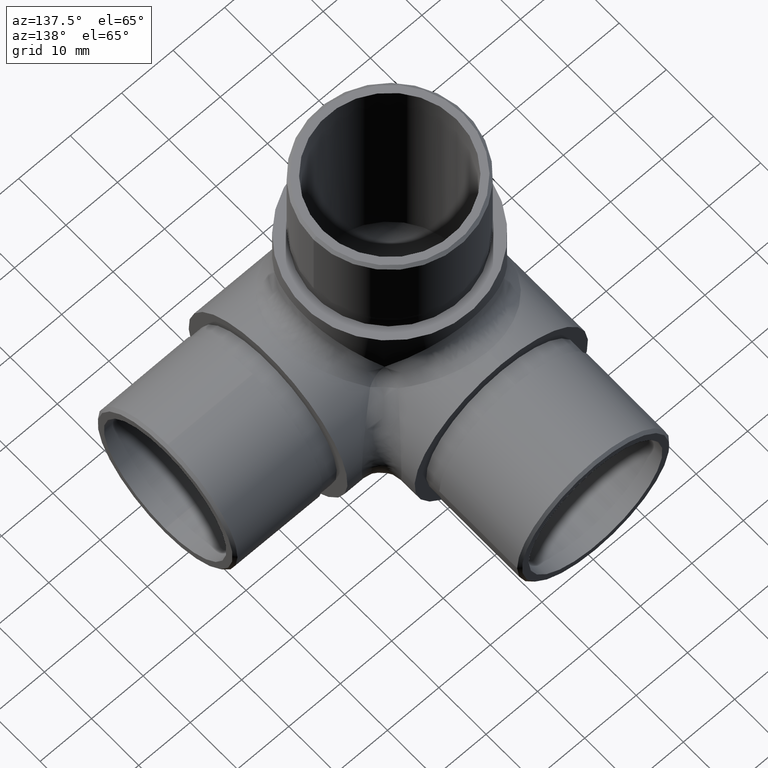
[diagram: clean part render]
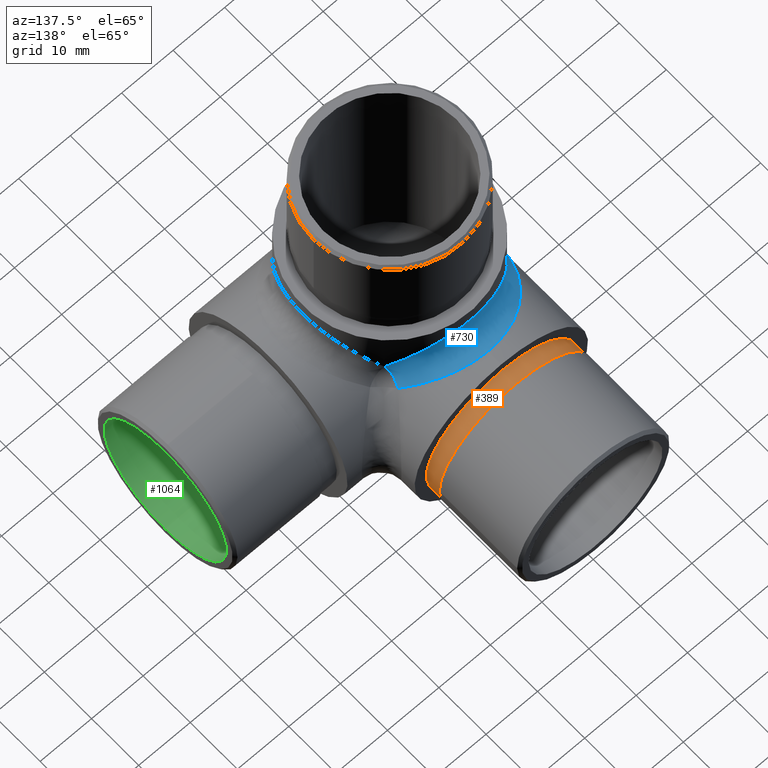
[diagram: same view with three faces highlighted in distinct colors, each labeled with its STEP entity id]
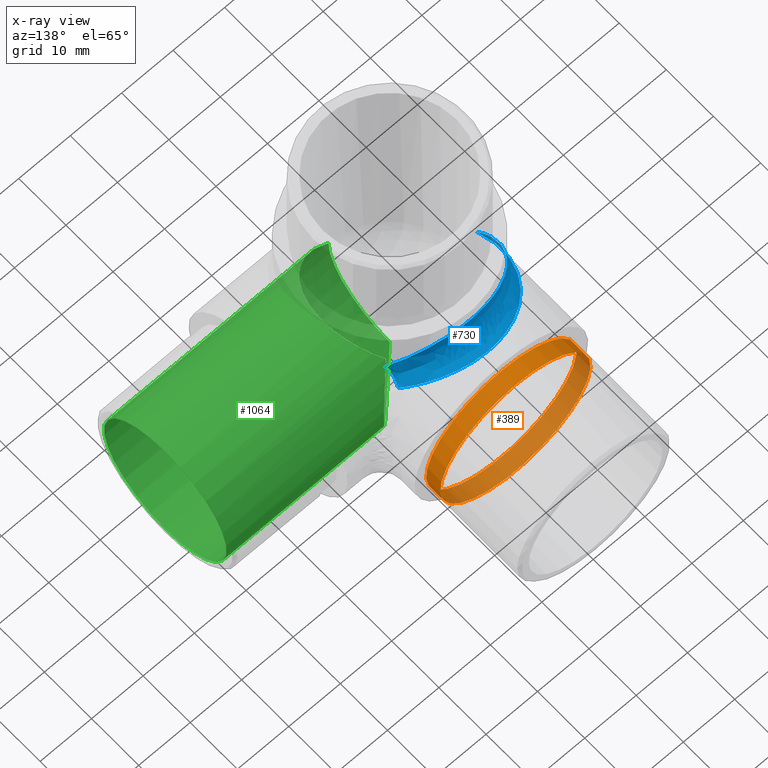
[diagram: x-ray of the same camera — body ghosted, the three highlighted faces saturated]
A machine part, auxiliary view with three faces highlighted in distinct colors.
The next image is the same camera in x-ray (body ghosted, the three faces saturated) — at least one of them is partly hidden behind the body in this view.
Their STEP definitions:

[orange] entity #389 — the highlighted cylindrical surface (bore or boss wall) has radius 14.6 mm, axis along (-0, -1, 0).
#18 = AXIS2_PLACEMENT_3D ( 'NONE', #583, #180, #933 ) ;
#180 = DIRECTION ( 'NONE',  ( 0.0000000000000000000, 1.000000000000000000, 0.0000000000000000000 ) ) ;
#198 = EDGE_CURVE ( 'NONE', #474, #474, #563, .T. ) ;
#205 = VERTEX_POINT ( 'NONE', #786 ) ;
#286 = CARTESIAN_POINT ( 'NONE',  ( 0.0000000000000000000, 40.49999999999999300, 31.44999999999998500 ) ) ;
#336 = DIRECTION ( 'NONE',  ( -0.0000000000000000000, -1.000000000000000000, 4.440892098500624700E-016 ) ) ;
#389 = ADVANCED_FACE ( 'NONE', ( #1061, #904 ), #833, .T. ) ;
#396 = ORIENTED_EDGE ( 'NONE', *, *, #537, .T. ) ;
#413 = DIRECTION ( 'NONE',  ( -0.0000000000000000000, -1.000000000000000000, 4.440892098500625200E-016 ) ) ;
#468 = CIRCLE ( 'NONE', #811, 14.60000000000000100 ) ;
#474 = VERTEX_POINT ( 'NONE', #286 ) ;
#537 = EDGE_CURVE ( 'NONE', #205, #205, #468, .T. ) ;
#563 = CIRCLE ( 'NONE', #18, 14.60000000000000100 ) ;
#574 = DIRECTION ( 'NONE',  ( 0.0000000000000000000, 4.752667057470704400E-016, 1.000000000000000000 ) ) ;
#582 = AXIS2_PLACEMENT_3D ( 'NONE', #756, #336, #855 ) ;
#583 = CARTESIAN_POINT ( 'NONE',  ( 0.0000000000000000000, 40.49999999999999300, 16.84999999999998400 ) ) ;
#704 = EDGE_LOOP ( 'NONE', ( #396 ) ) ;
#756 = CARTESIAN_POINT ( 'NONE',  ( 0.0000000000000000000, 43.50000000000001400, 16.84999999999998400 ) ) ;
#786 = CARTESIAN_POINT ( 'NONE',  ( 0.0000000000000000000, 43.50000000000002100, 31.44999999999998500 ) ) ;
#811 = AXIS2_PLACEMENT_3D ( 'NONE', #836, #413, #574 ) ;
#833 = CYLINDRICAL_SURFACE ( 'NONE', #582, 14.60000000000000000 ) ;
#836 = CARTESIAN_POINT ( 'NONE',  ( 0.0000000000000000000, 43.50000000000001400, 16.84999999999998400 ) ) ;
#855 = DIRECTION ( 'NONE',  ( 0.0000000000000000000, -4.752667057470704400E-016, -1.000000000000000000 ) ) ;
#904 = FACE_OUTER_BOUND ( 'NONE', #972, .T. ) ;
#933 = DIRECTION ( 'NONE',  ( 0.0000000000000000000, 0.0000000000000000000, 1.000000000000000000 ) ) ;
#970 = ORIENTED_EDGE ( 'NONE', *, *, #198, .T. ) ;
#972 = EDGE_LOOP ( 'NONE', ( #970 ) ) ;
#1061 = FACE_OUTER_BOUND ( 'NONE', #704, .T. ) ;

[blue] entity #730 — the highlighted face is a freeform B-spline surface patch.
#3 = CARTESIAN_POINT ( 'NONE',  ( -13.55073836021521100, 26.89908560142682600, 29.28462521007369900 ) ) ;
#16 = CARTESIAN_POINT ( 'NONE',  ( -0.8284491946658233400, 33.69993482074809100, 37.69991934792910400 ) ) ;
#19 = CARTESIAN_POINT ( 'NONE',  ( -2.550014675951885600, 33.53628196689218300, 33.53628196688850900 ) ) ;
#24 = CARTESIAN_POINT ( 'NONE',  ( -1.902788127803678900, 33.61309417136821800, 33.61309417136823200 ) ) ;
#32 = CARTESIAN_POINT ( 'NONE',  ( -3.896595488051196800, 33.28909050839045800, 33.28909050839408900 ) ) ;
#38 = CARTESIAN_POINT ( 'NONE',  ( -3.291881413837700200, 33.39600097572998300, 37.32383503524874900 ) ) ;
#56 =( BOUNDED_SURFACE ( )  B_SPLINE_SURFACE ( 3, 2, ( 
 ( #598, #342, #752 ),
 ( #162, #679, #514 ),
 ( #174, #248, #690 ),
 ( #181, #253, #261 ),
 ( #327, #844, #335 ),
 ( #930, #500, #3 ),
 ( #85, #675, #755 ),
 ( #953, #1031, #119 ),
 ( #530, #709, #958 ),
 ( #453, #778, #112 ),
 ( #187, #285, #534 ),
 ( #1027, #607, #950 ),
 ( #348, #264, #939 ),
 ( #356, #194, #1022 ),
 ( #782, #32, #442 ),
 ( #200, #19, #38 ),
 ( #771, #24, #438 ),
 ( #788, #697, #16 ),
 ( #275, #522, #945 ),
 ( #268, #364, #618 ),
 ( #118, #879, #281 ),
 ( #456, #864, #359 ),
 ( #872, #1037, #121 ),
 ( #538, #712, #206 ),
 ( #372, #790, #518 ),
 ( #105, #693, #463 ),
 ( #633, #126, #795 ),
 ( #210, #129, #1048 ),
 ( #1044, #1052, #797 ),
 ( #715, #884, #721 ) ),
 .UNSPECIFIED., .F., .F., .F. ) 
 B_SPLINE_SURFACE_WITH_KNOTS ( ( 4, 2, 2, 2, 2, 2, 2, 2, 2, 2, 2, 2, 2, 2, 4 ),
 ( 3, 3 ),
 ( 4.712388980384689700, 5.006913291658732700, 5.301437602932775700, 5.448699758569797600, 5.595961914206819500, 5.743224069843840600, 5.890486225480862500, 6.037748381117884500, 6.185010536754905500, 6.332272692391927500, 6.479534848028949400, 6.626797003665970500, 6.774059159302992400, 6.921321314940014300, 7.068583470577035400 ),
 ( 0.0000000000000000000, 1.000000000000000000 ),
 .UNSPECIFIED. ) 
 GEOMETRIC_REPRESENTATION_ITEM ( )  RATIONAL_B_SPLINE_SURFACE ( (
 ( 1.000000000000000000, 1.000000000000000000, 1.000000000000000000),
 ( 1.000000000000000000, 1.000049692711791900, 1.000000000000000000),
 ( 1.000000000000000000, 0.9926394134258085300, 1.000000000000000000),
 ( 1.000000000000000000, 0.9647745980450768100, 1.000000000000000000),
 ( 1.000000000000000000, 0.9442614554963632000, 1.000000000000000000),
 ( 1.000000000000000000, 0.9072747350166160400, 1.000000000000000000),
 ( 1.000000000000000000, 0.8939364460772180100, 1.000000000000000000),
 ( 1.000000000000000000, 0.8661820557088287800, 1.000000000000000000),
 ( 1.000000000000000000, 0.8517664595825985600, 1.000000000000000000),
 ( 1.000000000000000000, 0.8230199978452930100, 1.000000000000000000),
 ( 1.000000000000000000, 0.8086913583441853700, 1.000000000000000000),
 ( 1.000000000000000000, 0.7814668926402879000, 1.000000000000000000),
 ( 1.000000000000000000, 0.7685763963373663000, 1.000000000000000000),
 ( 1.000000000000000000, 0.7456538433598366400, 1.000000000000000000),
 ( 1.000000000000000000, 0.7356308174511289000, 1.000000000000000000),
 ( 1.000000000000000000, 0.7197312459721430000, 1.000000000000000000),
 ( 1.000000000000000000, 0.7138650231661207700, 1.000000000000000000),
 ( 1.000000000000000000, 0.7071257296527597700, 1.000000000000000000),
 ( 1.000000000000000000, 0.7062584530666192700, 1.000000000000000000),
 ( 1.000000000000000000, 0.7096565420258839100, 1.000000000000000000),
 ( 1.000000000000000000, 0.7139188639523939000, 1.000000000000000000),
 ( 1.000000000000000000, 0.7269560325909221200, 1.000000000000000000),
 ( 1.000000000000000000, 0.7357213436838573300, 1.000000000000000000),
 ( 1.000000000000000000, 0.7565887938670695600, 1.000000000000000000),
 ( 1.000000000000000000, 0.7686809988151190900, 1.000000000000000000),
 ( 1.000000000000000000, 0.7947862272502066400, 1.000000000000000000),
 ( 1.000000000000000000, 0.8087926538586103200, 1.000000000000000000),
 ( 1.000000000000000000, 0.8373286426276302900, 1.000000000000000000),
 ( 1.000000000000000000, 0.8518581657886930000, 1.000000000000000000),
 ( 1.000000000000000000, 0.8660254037844381500, 1.000000000000000000) ) ) 
 REPRESENTATION_ITEM ( '' )  SURFACE ( )  );
#68 = VERTEX_POINT ( 'NONE', #321 ) ;
#85 = CARTESIAN_POINT ( 'NONE',  ( -13.04048794398631700, 30.09366149215346200, 27.55291108598635600 ) ) ;
#95 = CIRCLE ( 'NONE', #576, 3.999999999999998200 ) ;
#105 = CARTESIAN_POINT ( 'NONE',  ( 8.672491884076693600, 34.75559700941654700, 31.32047048482940400 ) ) ;
#112 = CARTESIAN_POINT ( 'NONE',  ( -10.05015254536182400, 30.39994706066054100, 33.61655170413994400 ) ) ;
#114 = ORIENTED_EDGE ( 'NONE', *, *, #1004, .T. ) ;
#118 = CARTESIAN_POINT ( 'NONE',  ( 2.476042411216803400, 37.49904257481411900, 33.53759555806259800 ) ) ;
#119 = CARTESIAN_POINT ( 'NONE',  ( -11.92956498047467800, 28.77862569235940200, 31.61034692496281900 ) ) ;
#121 = CARTESIAN_POINT ( 'NONE',  ( 4.897821804585924500, 32.99366665606586200, 36.82599108480417300 ) ) ;
#126 = CARTESIAN_POINT ( 'NONE',  ( 8.179165438592150400, 31.67445315693311900, 31.67445315692892600 ) ) ;
#129 = CARTESIAN_POINT ( 'NONE',  ( 9.602003533387078300, 30.79191703265672000, 30.79191703266078800 ) ) ;
#162 = CARTESIAN_POINT ( 'NONE',  ( -16.84999999999999800, 18.89706118963251000, 18.50433961848018100 ) ) ;
#174 = CARTESIAN_POINT ( 'NONE',  ( -16.60464659856220500, 20.94363227762756500, 20.15828315962186000 ) ) ;
#181 = CARTESIAN_POINT ( 'NONE',  ( -15.64424271561319900, 24.86123876388360900, 23.32431046385362100 ) ) ;
#187 = CARTESIAN_POINT ( 'NONE',  ( -9.372077820912288400, 34.20747176428095300, 30.87750116201994600 ) ) ;
#194 = CARTESIAN_POINT ( 'NONE',  ( -4.587687804158994400, 33.12147724458719000, 33.12147724458719700 ) ) ;
#200 = CARTESIAN_POINT ( 'NONE',  ( -3.291881413838560800, 37.32383503525240100, 33.39600097572977700 ) ) ;
#206 = CARTESIAN_POINT ( 'NONE',  ( 6.455366254731967700, 32.43636834060191600, 36.13639643332776100 ) ) ;
#210 = CARTESIAN_POINT ( 'NONE',  ( 10.70188425443981500, 32.98719548388611100, 29.89133064285653100 ) ) ;
#244 = EDGE_LOOP ( 'NONE', ( #944, #114, #460 ) ) ;
#248 = CARTESIAN_POINT ( 'NONE',  ( -16.53677265078305300, 20.57543984439902100, 20.57543984441357700 ) ) ;
#253 = CARTESIAN_POINT ( 'NONE',  ( -15.35861035221727100, 24.06692191216546200, 24.06692191215051200 ) ) ;
#261 = CARTESIAN_POINT ( 'NONE',  ( -15.64424271561183300, 23.32431046385810800, 24.86123876388362000 ) ) ;
#264 = CARTESIAN_POINT ( 'NONE',  ( -6.007917976352775500, 32.66431149141736500, 32.66431149141736500 ) ) ;
#268 = CARTESIAN_POINT ( 'NONE',  ( 1.652916447725422100, 37.62466587201525700, 33.63911846251723100 ) ) ;
#275 = CARTESIAN_POINT ( 'NONE',  ( 0.0006641771086185075900, 37.72510465174043800, 33.72028841159708900 ) ) ;
#281 = CARTESIAN_POINT ( 'NONE',  ( 2.476042411216111500, 33.53759555806273300, 37.49904257481051000 ) ) ;
#285 = CARTESIAN_POINT ( 'NONE',  ( -8.176670518203900800, 31.67249837655805000, 31.67249837655805300 ) ) ;
#294 = DIRECTION ( 'NONE',  ( 0.5773502691896251800, -0.5773502691896260600, -0.5773502691896260600 ) ) ;
#304 = DIRECTION ( 'NONE',  ( -8.673617379884039400E-016, -0.7071067811865479100, 0.7071067811865471300 ) ) ;
#321 = CARTESIAN_POINT ( 'NONE',  ( -16.85000000000000500, 16.84999999999998400, 16.84999999999999400 ) ) ;
#327 = CARTESIAN_POINT ( 'NONE',  ( -14.92931218146187100, 26.73166765522400800, 24.83590407628928900 ) ) ;
#333 = VERTEX_POINT ( 'NONE', #768 ) ;
#335 = CARTESIAN_POINT ( 'NONE',  ( -14.92931218146329000, 24.83590407628716100, 26.73166765522863400 ) ) ;
#342 = CARTESIAN_POINT ( 'NONE',  ( -16.84999999999999800, 16.84999999999999800, 16.85000000000000900 ) ) ;
#348 = CARTESIAN_POINT ( 'NONE',  ( -7.212377329057616700, 35.72122248211493200, 32.10084406827894600 ) ) ;
#354 = CARTESIAN_POINT ( 'NONE',  ( -16.85000000000001200, 38.67309936558652300, 34.48641363597759800 ) ) ;
#356 = CARTESIAN_POINT ( 'NONE',  ( -5.684054341645815400, 36.50455402360577000, 32.73389617735147500 ) ) ;
#359 = CARTESIAN_POINT ( 'NONE',  ( 4.098501440727354800, 33.21486839152614600, 37.09970361800424100 ) ) ;
#362 =( BOUNDED_CURVE ( )  B_SPLINE_CURVE ( 3, ( #943, #354, #1026, #457 ),
 .UNSPECIFIED., .F., .F. ) 
 B_SPLINE_CURVE_WITH_KNOTS ( ( 4, 4 ),
 ( 4.712388980384688800, 7.068583470577034500 ),
 .UNSPECIFIED. ) 
 CURVE ( )  GEOMETRIC_REPRESENTATION_ITEM ( )  RATIONAL_B_SPLINE_CURVE ( ( 1.000000000000000000, 0.5884556215767262600, 0.5884556215767262600, 1.000000000000000000 ) ) 
 REPRESENTATION_ITEM ( '' )  );
#364 = CARTESIAN_POINT ( 'NONE',  ( 1.262782113315530400, 33.66787279699640600, 33.66787279699640600 ) ) ;
#372 = CARTESIAN_POINT ( 'NONE',  ( 7.213578146959532600, 35.72051971390977300, 32.10027612371012400 ) ) ;
#378 =( BOUNDED_CURVE ( )  B_SPLINE_CURVE ( 3, ( #711, #707, #794, #1045 ),
 .UNSPECIFIED., .F., .F. ) 
 B_SPLINE_CURVE_WITH_KNOTS ( ( 4, 4 ),
 ( 5.497787143782138000, 7.853981633974483700 ),
 .UNSPECIFIED. ) 
 CURVE ( )  GEOMETRIC_REPRESENTATION_ITEM ( )  RATIONAL_B_SPLINE_CURVE ( ( 1.000000000000000000, 0.5884556215767262600, 0.5884556215767262600, 1.000000000000000000 ) ) 
 REPRESENTATION_ITEM ( '' )  );
#432 = VERTEX_POINT ( 'NONE', #523 ) ;
#438 = CARTESIAN_POINT ( 'NONE',  ( -2.474728434440271100, 33.53779046810495100, 37.49928375430153000 ) ) ;
#442 = CARTESIAN_POINT ( 'NONE',  ( -4.896550648902248800, 32.99405225692616000, 36.82646822296377600 ) ) ;
#453 = CARTESIAN_POINT ( 'NONE',  ( -10.05015254536119300, 33.61655170413993000, 30.39994706066107000 ) ) ;
#456 = CARTESIAN_POINT ( 'NONE',  ( 4.098501440726662000, 37.09970361800061100, 33.21486839152629500 ) ) ;
#457 = CARTESIAN_POINT ( 'NONE',  ( 11.91474926299332900, 31.59317638773950800, 28.76474926299332700 ) ) ;
#460 = ORIENTED_EDGE ( 'NONE', *, *, #817, .F. ) ;
#463 = CARTESIAN_POINT ( 'NONE',  ( 8.672491884076693600, 31.32047048482938900, 34.75559700941656200 ) ) ;
#500 = CARTESIAN_POINT ( 'NONE',  ( -12.85083583709549200, 27.84872592894996800, 27.84872592894295800 ) ) ;
#514 = CARTESIAN_POINT ( 'NONE',  ( -16.84999999999999800, 18.50433961848149900, 18.89706118963416500 ) ) ;
#518 = CARTESIAN_POINT ( 'NONE',  ( 7.213578146959532600, 32.10027612371011000, 35.72051971390978800 ) ) ;
#522 = CARTESIAN_POINT ( 'NONE',  ( -0.002894757781482992000, 33.71082885428258200, 33.71082885428258900 ) ) ;
#523 = CARTESIAN_POINT ( 'NONE',  ( 11.91474926299332700, 28.76474926299331300, 31.59317638773950800 ) ) ;
#530 = CARTESIAN_POINT ( 'NONE',  ( -11.32890113095360200, 32.31798420108626100, 29.35050521766323700 ) ) ;
#534 = CARTESIAN_POINT ( 'NONE',  ( -9.372077820913023800, 30.87750116201949900, 34.20747176428096000 ) ) ;
#538 = CARTESIAN_POINT ( 'NONE',  ( 6.455366254731967700, 36.13639643332775400, 32.43636834060192300 ) ) ;
#576 = AXIS2_PLACEMENT_3D ( 'NONE', #967, #294, #304 ) ;
#598 = CARTESIAN_POINT ( 'NONE',  ( -16.84999999999999800, 16.84999999999999800, 16.85000000000000900 ) ) ;
#607 = CARTESIAN_POINT ( 'NONE',  ( -6.730578844063210800, 32.37952239489945300, 32.37952239489945300 ) ) ;
#618 = CARTESIAN_POINT ( 'NONE',  ( 1.652916447725422100, 33.63911846251722400, 37.62466587201525700 ) ) ;
#633 = CARTESIAN_POINT ( 'NONE',  ( 9.373182306955239800, 34.20655857885672900, 30.87676316804118700 ) ) ;
#675 = CARTESIAN_POINT ( 'NONE',  ( -12.24997251432274000, 28.51757407722634600, 28.51757407722417200 ) ) ;
#679 = CARTESIAN_POINT ( 'NONE',  ( -16.85000000000501800, 18.70061713646007100, 18.70061713645505800 ) ) ;
#690 = CARTESIAN_POINT ( 'NONE',  ( -16.60464659856356900, 20.15828315961735100, 20.94363227762757500 ) ) ;
#693 = CARTESIAN_POINT ( 'NONE',  ( 7.453532806661487000, 32.04650414770814100, 32.04650414770815600 ) ) ;
#697 = CARTESIAN_POINT ( 'NONE',  ( -0.6251163988764962800, 33.70080803506641600, 33.70080803506641600 ) ) ;
#707 = CARTESIAN_POINT ( 'NONE',  ( -0.5560784148173330000, 41.23557694080398100, 47.02443793565361600 ) ) ;
#709 = CARTESIAN_POINT ( 'NONE',  ( -10.29547838493556400, 30.28593229436552600, 30.28593229436554800 ) ) ;
#711 = CARTESIAN_POINT ( 'NONE',  ( 11.91474926299332700, 28.76474926299331300, 31.59317638773950800 ) ) ;
#712 = CARTESIAN_POINT ( 'NONE',  ( 5.293373670574206700, 32.91072260665741600, 32.91072260665372800 ) ) ;
#715 = CARTESIAN_POINT ( 'NONE',  ( 11.91474926299331300, 31.59317638773952900, 28.76474926299334800 ) ) ;
#721 = CARTESIAN_POINT ( 'NONE',  ( 11.91474926299331300, 28.76474926299333400, 31.59317638773954300 ) ) ;
#722 = FACE_OUTER_BOUND ( 'NONE', #244, .T. ) ;
#730 = ADVANCED_FACE ( 'NONE', ( #722 ), #56, .F. ) ;
#752 = CARTESIAN_POINT ( 'NONE',  ( -16.84999999999999800, 16.84999999999999800, 16.85000000000000900 ) ) ;
#755 = CARTESIAN_POINT ( 'NONE',  ( -13.04048794398741700, 27.55291108598513400, 30.09366149215789200 ) ) ;
#768 = CARTESIAN_POINT ( 'NONE',  ( 11.91474926299332900, 31.59317638773950800, 28.76474926299332700 ) ) ;
#771 = CARTESIAN_POINT ( 'NONE',  ( -2.474728434440508700, 37.49928375430509000, 33.53779046810493000 ) ) ;
#778 = CARTESIAN_POINT ( 'NONE',  ( -8.897202919166328900, 31.25577954046120900, 31.25577954046121900 ) ) ;
#782 = CARTESIAN_POINT ( 'NONE',  ( -4.896550648901387200, 36.82646822296010900, 32.99405225692638800 ) ) ;
#788 = CARTESIAN_POINT ( 'NONE',  ( -0.8284491946655857500, 37.69991934792553000, 33.69993482074812600 ) ) ;
#790 = CARTESIAN_POINT ( 'NONE',  ( 6.008535096182160200, 32.66736895205271900, 32.66736895205273300 ) ) ;
#794 = CARTESIAN_POINT ( 'NONE',  ( -16.85000000000001200, 34.48641363597759800, 38.67309936558653000 ) ) ;
#795 = CARTESIAN_POINT ( 'NONE',  ( 9.373182306953928800, 30.87676316804214600, 34.20655857885260800 ) ) ;
#797 = CARTESIAN_POINT ( 'NONE',  ( 11.32987064038145100, 29.34962788560519800, 32.31689860027009300 ) ) ;
#817 = EDGE_CURVE ( 'NONE', #68, #333, #362, .T. ) ;
#844 = CARTESIAN_POINT ( 'NONE',  ( -14.46498603253547400, 25.71882829547817600, 25.71882829549167600 ) ) ;
#864 = CARTESIAN_POINT ( 'NONE',  ( 3.218198065706881800, 33.42654214454100300, 33.42654214454459100 ) ) ;
#872 = CARTESIAN_POINT ( 'NONE',  ( 4.897821804585924500, 36.82599108480416600, 32.99366665606586900 ) ) ;
#877 = EDGE_CURVE ( 'NONE', #432, #68, #378, .T. ) ;
#879 = CARTESIAN_POINT ( 'NONE',  ( 1.898126128376337100, 33.61531189982515100, 33.61531189982150600 ) ) ;
#884 = CARTESIAN_POINT ( 'NONE',  ( 10.97194022141124700, 29.70755830457540000, 29.70755830457540700 ) ) ;
#930 = CARTESIAN_POINT ( 'NONE',  ( -13.55073836021592200, 29.28462521007600500, 26.89908560142577100 ) ) ;
#939 = CARTESIAN_POINT ( 'NONE',  ( -7.212377329057615900, 32.10084406827893800, 35.72122248211493900 ) ) ;
#943 = CARTESIAN_POINT ( 'NONE',  ( -16.85000000000000500, 16.84999999999998400, 16.84999999999999400 ) ) ;
#944 = ORIENTED_EDGE ( 'NONE', *, *, #877, .F. ) ;
#945 = CARTESIAN_POINT ( 'NONE',  ( 0.0006641771086187244300, 33.72028841159708200, 37.72510465174044500 ) ) ;
#950 = CARTESIAN_POINT ( 'NONE',  ( -7.953184658398494200, 31.72795299498970700, 35.25981127273043800 ) ) ;
#953 = CARTESIAN_POINT ( 'NONE',  ( -11.92956498047577800, 31.61034692496722400, 28.77862569235820100 ) ) ;
#958 = CARTESIAN_POINT ( 'NONE',  ( -11.32890113095297300, 29.35050521766374100, 32.31798420108627600 ) ) ;
#967 = CARTESIAN_POINT ( 'NONE',  ( 14.74317638773952200, 31.59317638773950800, 31.59317638773952200 ) ) ;
#1004 = EDGE_CURVE ( 'NONE', #432, #333, #95, .T. ) ;
#1022 = CARTESIAN_POINT ( 'NONE',  ( -5.684054341645816200, 32.73389617735146800, 36.50455402360577800 ) ) ;
#1026 = CARTESIAN_POINT ( 'NONE',  ( -0.5560784148173399900, 47.02443793565359400, 41.23557694080398800 ) ) ;
#1027 = CARTESIAN_POINT ( 'NONE',  ( -7.953184658399227800, 35.25981127273043100, 31.72795299498927000 ) ) ;
#1031 = CARTESIAN_POINT ( 'NONE',  ( -10.97414848843694000, 29.73733898682313300, 29.73733898682538500 ) ) ;
#1037 = CARTESIAN_POINT ( 'NONE',  ( 3.894544055676481400, 33.29239679482723300, 33.29239679483104200 ) ) ;
#1044 = CARTESIAN_POINT ( 'NONE',  ( 11.32987064039049100, 32.31689860028637900, 29.34962788559617100 ) ) ;
#1045 = CARTESIAN_POINT ( 'NONE',  ( -16.85000000000000500, 16.84999999999998400, 16.84999999999999400 ) ) ;
#1048 = CARTESIAN_POINT ( 'NONE',  ( 10.70188425444112600, 29.89133064285554300, 32.98719548389026100 ) ) ;
#1052 = CARTESIAN_POINT ( 'NONE',  ( 10.29885095195096200, 30.28653663589744500, 30.28653663587755000 ) ) ;

[green] entity #1064 — the highlighted cylindrical surface (bore or boss wall) has radius 13 mm, axis along (1, -0, -0).
#12 = EDGE_LOOP ( 'NONE', ( #93, #553, #961 ) ) ;
#82 = CARTESIAN_POINT ( 'NONE',  ( 13.60672862122899900, 30.45672862122897900, 3.850000000000006300 ) ) ;
#93 = ORIENTED_EDGE ( 'NONE', *, *, #720, .T. ) ;
#96 = CARTESIAN_POINT ( 'NONE',  ( 43.64999999999999900, 16.85000000000000100, 16.84999999999998000 ) ) ;
#104 =( BOUNDED_CURVE ( )  B_SPLINE_CURVE ( 3, ( #240, #751, #82, #410 ),
 .UNSPECIFIED., .F., .F. ) 
 B_SPLINE_CURVE_WITH_KNOTS ( ( 4, 4 ),
 ( 5.497787143782138800, 7.853981633974482800 ),
 .UNSPECIFIED. ) 
 CURVE ( )  GEOMETRIC_REPRESENTATION_ITEM ( )  RATIONAL_B_SPLINE_CURVE ( ( 1.000000000000000000, 0.5884556215767268200, 0.5884556215767268200, 1.000000000000000000 ) ) 
 REPRESENTATION_ITEM ( '' )  );
#152 = CARTESIAN_POINT ( 'NONE',  ( 0.0000000000000000000, 16.84999999999998700, 16.84999999999999800 ) ) ;
#160 = CARTESIAN_POINT ( 'NONE',  ( 3.207317652110634800E-047, 3.849999999999989000, 16.85000000000000500 ) ) ;
#164 = AXIS2_PLACEMENT_3D ( 'NONE', #152, #1009, #743 ) ;
#208 = CARTESIAN_POINT ( 'NONE',  ( 43.64999999999999900, 16.85000000000000100, 29.84999999999998000 ) ) ;
#223 = VERTEX_POINT ( 'NONE', #414 ) ;
#240 = CARTESIAN_POINT ( 'NONE',  ( 9.192388155425122800, 26.04238815542510800, 26.04238815542511500 ) ) ;
#260 = EDGE_CURVE ( 'NONE', #625, #405, #366, .T. ) ;
#324 = FACE_OUTER_BOUND ( 'NONE', #12, .T. ) ;
#366 = CIRCLE ( 'NONE', #164, 13.00000000000000200 ) ;
#386 = CYLINDRICAL_SURFACE ( 'NONE', #805, 13.00000000000000200 ) ;
#405 = VERTEX_POINT ( 'NONE', #698 ) ;
#410 = CARTESIAN_POINT ( 'NONE',  ( 0.0000000000000000000, 16.84999999999999800, 3.849999999999995600 ) ) ;
#414 = CARTESIAN_POINT ( 'NONE',  ( 9.192388155425122800, 26.04238815542510800, 26.04238815542511500 ) ) ;
#428 = CARTESIAN_POINT ( 'NONE',  ( 18.81379823326123100, 16.42097807758899500, 35.66379823326122500 ) ) ;
#487 = EDGE_CURVE ( 'NONE', #223, #405, #104, .T. ) ;
#496 = VERTEX_POINT ( 'NONE', #208 ) ;
#505 =( BOUNDED_CURVE ( )  B_SPLINE_CURVE ( 3, ( #934, #923, #428, #603 ),
 .UNSPECIFIED., .F., .F. ) 
 B_SPLINE_CURVE_WITH_KNOTS ( ( 4, 4 ),
 ( 4.712388980384689700, 7.068583470577034500 ),
 .UNSPECIFIED. ) 
 CURVE ( )  GEOMETRIC_REPRESENTATION_ITEM ( )  RATIONAL_B_SPLINE_CURVE ( ( 1.000000000000000000, 0.5884556215767264800, 0.5884556215767264800, 1.000000000000000000 ) ) 
 REPRESENTATION_ITEM ( '' )  );
#553 = ORIENTED_EDGE ( 'NONE', *, *, #487, .T. ) ;
#603 = CARTESIAN_POINT ( 'NONE',  ( 9.192388155425122800, 26.04238815542510800, 26.04238815542511500 ) ) ;
#614 = CIRCLE ( 'NONE', #1015, 13.00000000000000200 ) ;
#625 = VERTEX_POINT ( 'NONE', #160 ) ;
#641 = DIRECTION ( 'NONE',  ( 1.000000000000000000, -0.0000000000000000000, -0.0000000000000000000 ) ) ;
#666 = EDGE_CURVE ( 'NONE', #496, #496, #614, .T. ) ;
#669 = ORIENTED_EDGE ( 'NONE', *, *, #666, .F. ) ;
#698 = CARTESIAN_POINT ( 'NONE',  ( 0.0000000000000000000, 16.84999999999999800, 3.849999999999995600 ) ) ;
#720 = EDGE_CURVE ( 'NONE', #625, #223, #505, .T. ) ;
#743 = DIRECTION ( 'NONE',  ( 0.0000000000000000000, 0.0000000000000000000, -1.000000000000000000 ) ) ;
#751 = CARTESIAN_POINT ( 'NONE',  ( 18.81379823326122400, 35.66379823326121100, 16.42097807758899800 ) ) ;
#780 = FACE_OUTER_BOUND ( 'NONE', #1062, .T. ) ;
#796 = DIRECTION ( 'NONE',  ( 0.0000000000000000000, 0.0000000000000000000, -1.000000000000000000 ) ) ;
#805 = AXIS2_PLACEMENT_3D ( 'NONE', #1057, #641, #796 ) ;
#834 = DIRECTION ( 'NONE',  ( 0.0000000000000000000, 0.0000000000000000000, 1.000000000000000000 ) ) ;
#923 = CARTESIAN_POINT ( 'NONE',  ( 13.60672862122901000, 3.849999999999993400, 30.45672862122899700 ) ) ;
#934 = CARTESIAN_POINT ( 'NONE',  ( 3.207317652110634800E-047, 3.849999999999989000, 16.85000000000000500 ) ) ;
#961 = ORIENTED_EDGE ( 'NONE', *, *, #260, .F. ) ;
#1009 = DIRECTION ( 'NONE',  ( 1.000000000000000000, 0.0000000000000000000, 0.0000000000000000000 ) ) ;
#1015 = AXIS2_PLACEMENT_3D ( 'NONE', #96, #1016, #834 ) ;
#1016 = DIRECTION ( 'NONE',  ( -1.000000000000000000, -0.0000000000000000000, 4.440892098500625200E-016 ) ) ;
#1057 = CARTESIAN_POINT ( 'NONE',  ( 0.0000000000000000000, 16.84999999999998700, 16.84999999999999800 ) ) ;
#1062 = EDGE_LOOP ( 'NONE', ( #669 ) ) ;
#1064 = ADVANCED_FACE ( 'NONE', ( #324, #780 ), #386, .F. ) ;